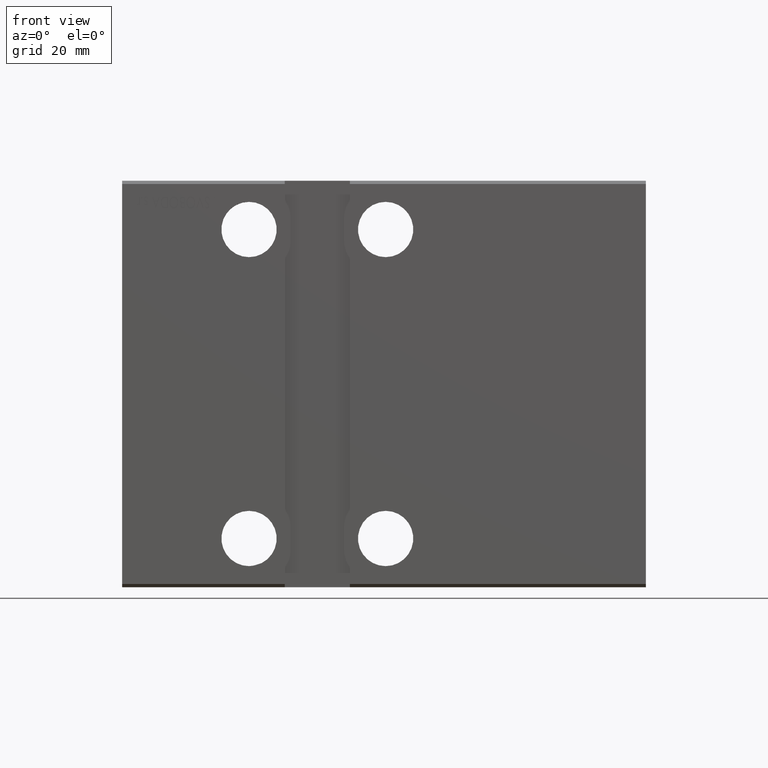
[diagram: clean part render]
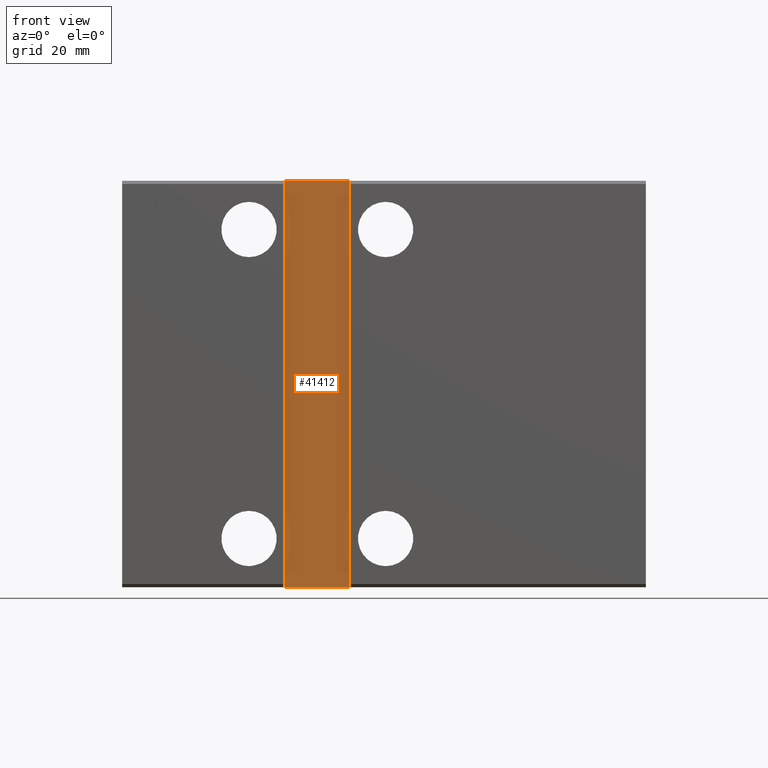
[diagram: same view with one face highlighted and labeled with its STEP entity id]
A machine part, front view. The second image highlights one B-rep face of the part: STEP entity #41412.
In plain terms, the highlighted planar face has unit normal (0, -1, 0).
Its self-contained STEP definition (entity closure, byte-faithful):
#48 = VERTEX_POINT ( 'NONE', #33246 ) ;
#367 = DIRECTION ( 'NONE',  ( 1.110223024625156540E-16, 0.000000000000000000, -1.000000000000000000 ) ) ;
#1550 = DIRECTION ( 'NONE',  ( 0.000000000000000000, -1.000000000000000000, 0.000000000000000000 ) ) ;
#4657 = VERTEX_POINT ( 'NONE', #13983 ) ;
#5954 = ORIENTED_EDGE ( 'NONE', *, *, #26479, .T. ) ;
#7731 = PLANE ( 'NONE',  #31963 ) ;
#7921 = VECTOR ( 'NONE', #367, 1000.000000000000000 ) ;
#8068 = DIRECTION ( 'NONE',  ( 1.000000000000000000, 0.000000000000000000, 0.000000000000000000 ) ) ;
#8405 = EDGE_LOOP ( 'NONE', ( #37013, #11009, #23793, #5954 ) ) ;
#10969 = EDGE_CURVE ( 'NONE', #22657, #4657, #29364, .T. ) ;
#11009 = ORIENTED_EDGE ( 'NONE', *, *, #16029, .T. ) ;
#13909 = CARTESIAN_POINT ( 'NONE',  ( 0.000000000000000000, -45.50000000000000711, 1.101411730778925047E-16 ) ) ;
#13983 = CARTESIAN_POINT ( 'NONE',  ( 50.00000000000000000, -45.50000000000000711, -62.50000000000002842 ) ) ;
#15581 = CARTESIAN_POINT ( 'NONE',  ( 49.99999999999998579, -45.50000000000000711, 62.49999999999997868 ) ) ;
#16029 = EDGE_CURVE ( 'NONE', #48, #22657, #18591, .T. ) ;
#16356 = CARTESIAN_POINT ( 'NONE',  ( 49.99999999999998579, -45.50000000000000711, 62.49999999999997868 ) ) ;
#16923 = VERTEX_POINT ( 'NONE', #37765 ) ;
#17435 = LINE ( 'NONE', #37283, #21991 ) ;
#18591 = LINE ( 'NONE', #28202, #21715 ) ;
#21715 = VECTOR ( 'NONE', #41221, 1000.000000000000000 ) ;
#21991 = VECTOR ( 'NONE', #27454, 1000.000000000000000 ) ;
#22657 = VERTEX_POINT ( 'NONE', #15581 ) ;
#23793 = ORIENTED_EDGE ( 'NONE', *, *, #10969, .T. ) ;
#26479 = EDGE_CURVE ( 'NONE', #4657, #16923, #27267, .T. ) ;
#27267 = LINE ( 'NONE', #30258, #36963 ) ;
#27454 = DIRECTION ( 'NONE',  ( -1.110223024625156540E-16, -0.000000000000000000, 1.000000000000000000 ) ) ;
#28202 = CARTESIAN_POINT ( 'NONE',  ( 49.99999999999998579, -45.50000000000000711, 62.49999999999997868 ) ) ;
#28399 = EDGE_CURVE ( 'NONE', #16923, #48, #17435, .T. ) ;
#29364 = LINE ( 'NONE', #16356, #7921 ) ;
#30258 = CARTESIAN_POINT ( 'NONE',  ( 50.00000000000000000, -45.50000000000000711, -62.50000000000002842 ) ) ;
#30973 = DIRECTION ( 'NONE',  ( 0.000000000000000000, -0.000000000000000000, -1.000000000000000000 ) ) ;
#31963 = AXIS2_PLACEMENT_3D ( 'NONE', #13909, #1550, #30973 ) ;
#33246 = CARTESIAN_POINT ( 'NONE',  ( 70.00000000000000000, -45.50000000000000711, 62.49999999999997868 ) ) ;
#33761 = FACE_OUTER_BOUND ( 'NONE', #8405, .T. ) ;
#36963 = VECTOR ( 'NONE', #8068, 1000.000000000000000 ) ;
#37013 = ORIENTED_EDGE ( 'NONE', *, *, #28399, .T. ) ;
#37283 = CARTESIAN_POINT ( 'NONE',  ( 70.00000000000000000, -45.50000000000000711, 62.49999999999997868 ) ) ;
#37765 = CARTESIAN_POINT ( 'NONE',  ( 70.00000000000001421, -45.50000000000000711, -62.50000000000002842 ) ) ;
#41221 = DIRECTION ( 'NONE',  ( -1.000000000000000000, -0.000000000000000000, -0.000000000000000000 ) ) ;
#41412 = ADVANCED_FACE ( 'NONE', ( #33761 ), #7731, .T. ) ;